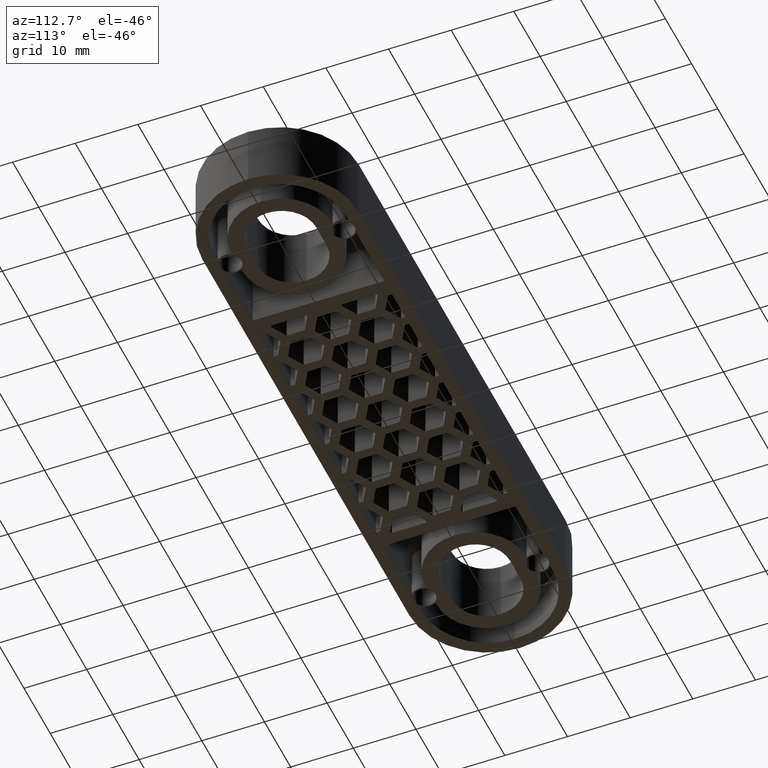
[diagram: clean part render]
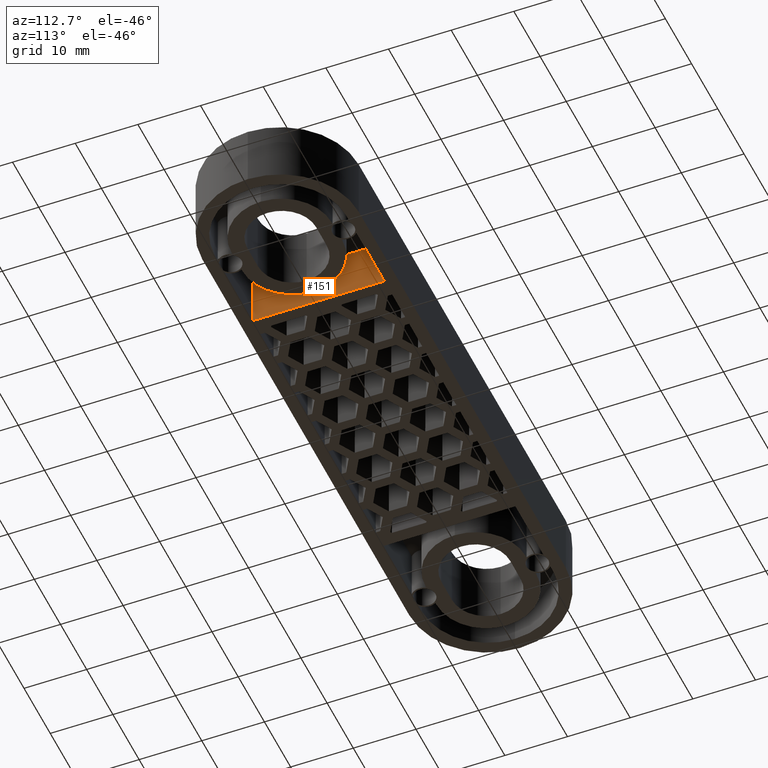
[diagram: same view with one face highlighted and labeled with its STEP entity id]
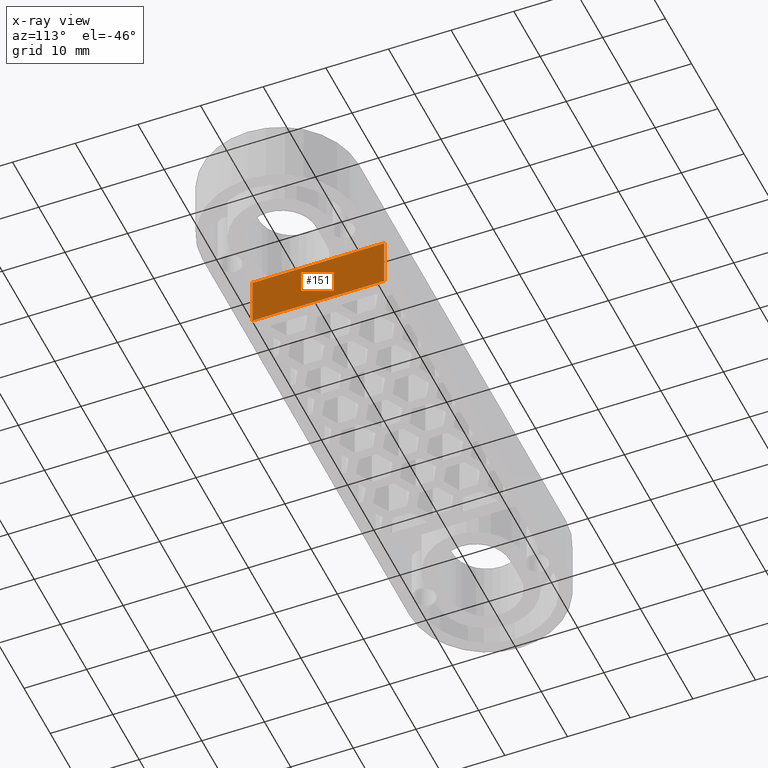
[diagram: x-ray of the same camera — body ghosted, the highlighted face saturated]
A machine part, auxiliary view. The second image highlights one B-rep face of the part: STEP entity #151.
The next image is the same camera in x-ray: the body ghosted, the highlighted face saturated — about 0% of this face is hidden behind the body in this view.
In plain terms, the highlighted planar face has unit normal (-1, 0, 0).
Its self-contained STEP definition (entity closure, byte-faithful):
#151 = ADVANCED_FACE( '', ( #589 ), #590, .F. );
#589 = FACE_OUTER_BOUND( '', #1355, .T. );
#590 = PLANE( '', #1356 );
#1355 = EDGE_LOOP( '', ( #2590, #2591, #2592, #2593 ) );
#1356 = AXIS2_PLACEMENT_3D( '', #2594, #2595, #2596 );
#2590 = ORIENTED_EDGE( '', *, *, #5130, .T. );
#2591 = ORIENTED_EDGE( '', *, *, #4919, .T. );
#2592 = ORIENTED_EDGE( '', *, *, #4897, .T. );
#2593 = ORIENTED_EDGE( '', *, *, #4923, .F. );
#2594 = CARTESIAN_POINT( '', ( 24.9999999999999, 10.5000000000000, -7.99999999985812 ) );
#2595 = DIRECTION( '', ( -1.00000000000000, 0.000000000000000, 0.000000000000000 ) );
#2596 = DIRECTION( '', ( 0.000000000000000, 1.00000000000000, -6.12303176911189E-017 ) );
#4897 = EDGE_CURVE( '', #5879, #5877, #5880, .T. );
#4919 = EDGE_CURVE( '', #5919, #5879, #5920, .T. );
#4923 = EDGE_CURVE( '', #5924, #5877, #5926, .T. );
#5130 = EDGE_CURVE( '', #5924, #5919, #6308, .T. );
#5877 = VERTEX_POINT( '', #7433 );
#5879 = VERTEX_POINT( '', #7436 );
#5880 = LINE( '', #7437, #7438 );
#5919 = VERTEX_POINT( '', #7492 );
#5920 = LINE( '', #7493, #7494 );
#5924 = VERTEX_POINT( '', #7500 );
#5926 = LINE( '', #7503, #7504 );
#6308 = LINE( '', #8086, #8087 );
#7433 = CARTESIAN_POINT( '', ( 24.9999999999999, -10.5000000000000, 7.99999999999997 ) );
#7436 = CARTESIAN_POINT( '', ( 24.9999999999999, 10.5000000000000, 7.99999999999997 ) );
#7437 = CARTESIAN_POINT( '', ( 24.9999999999999, 10.5000000000000, 7.99999999999997 ) );
#7438 = VECTOR( '', #9625, 1000.00000000000 );
#7492 = CARTESIAN_POINT( '', ( 24.9999999999999, 10.5000000000000, -1.45207061435712E-014 ) );
#7493 = CARTESIAN_POINT( '', ( 24.9999999999999, 10.5000000000000, -7.99999999985812 ) );
#7494 = VECTOR( '', #9659, 1000.00000000000 );
#7500 = CARTESIAN_POINT( '', ( 24.9999999999999, -10.5000000000000, -1.32348694720577E-014 ) );
#7503 = CARTESIAN_POINT( '', ( 24.9999999999999, -10.5000000000000, -7.99999999985812 ) );
#7504 = VECTOR( '', #9663, 1000.00000000000 );
#8086 = CARTESIAN_POINT( '', ( 24.9999999999999, 3.46944695195362E-015, -1.38777878078145E-014 ) );
#8087 = VECTOR( '', #9882, 1000.00000000000 );
#9625 = DIRECTION( '', ( 0.000000000000000, -1.00000000000000, 6.12303176911189E-017 ) );
#9659 = DIRECTION( '', ( 0.000000000000000, 6.12303176911189E-017, 1.00000000000000 ) );
#9663 = DIRECTION( '', ( 0.000000000000000, 6.12303176911189E-017, 1.00000000000000 ) );
#9882 = DIRECTION( '', ( 0.000000000000000, 1.00000000000000, -6.12303176911189E-017 ) );